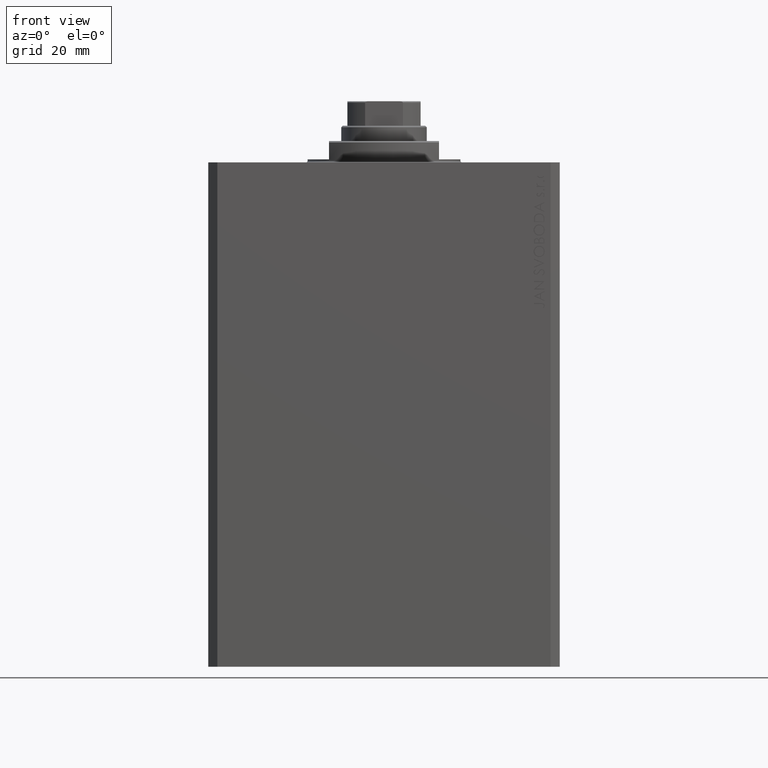
[diagram: clean part render]
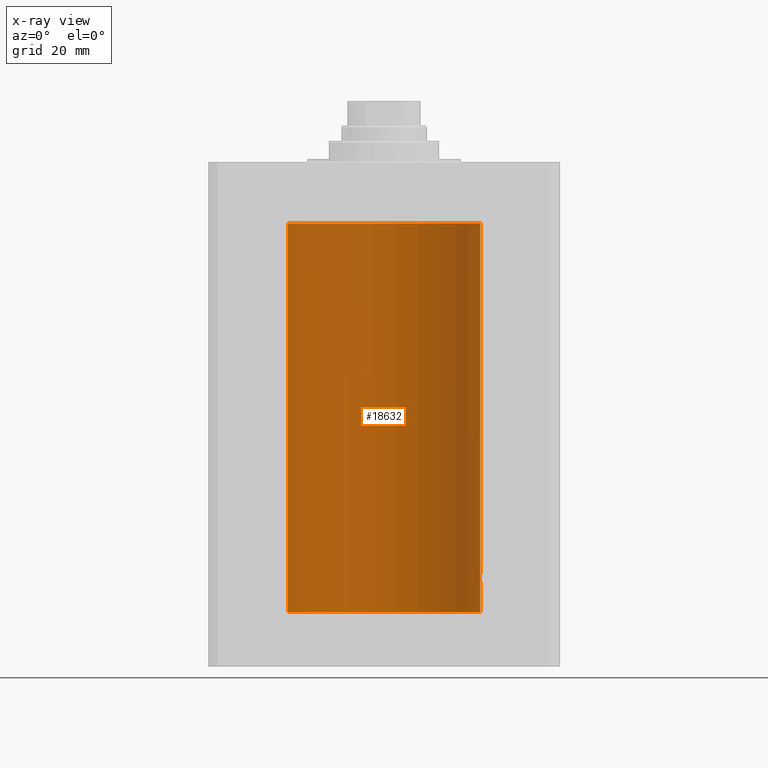
[diagram: x-ray — body ghosted, one internal face saturated and labeled with its STEP entity id]
A machine part, front view, then the same camera in x-ray: the body is ghosted and one INTERNAL B-rep face — a face not visible from any outside direction — is saturated and labeled: STEP entity #18632.
In plain terms, the highlighted cylindrical surface (partial cylindrical patch) has radius 31.5 mm, axis along (0, 0, 1).
Its self-contained STEP definition (entity closure, byte-faithful):
#80 = CARTESIAN_POINT ( 'NONE',  ( -31.49364602877929897, 0.6441674297270015837, -30.89795957697708317 ) ) ;
#1962 = B_SPLINE_CURVE_WITH_KNOTS ( 'NONE', 3,
 ( #24655, #13912, #10114, #42823, #3198, #17258, #21311, #17493, #6538, #28940, #10585, #18190, #9882, #7005, #35890, #27998, #20832, #28704, #39949, #35654, #31818, #24422, #46888, #17725, #7240, #80, #39005, #14149, #3668, #46413 ),
 .UNSPECIFIED., .F., .F.,
 ( 4, 2, 2, 2, 2, 2, 2, 2, 2, 2, 2, 2, 2, 2, 4 ),
 ( 2.625213444697534148E-19, 0.0003909052907595647391, 0.0007818105815191293698, 0.001172715872278693892, 0.001563621163038258956, 0.002345431744557394723, 0.003127242326076530923, 0.003518147616836098807, 0.003909052907595665823, 0.004299958198355233706, 0.004690863489114801589, 0.005081768779874370340, 0.005472674070633938223, 0.005863579361393506106, 0.006254484652153074857 ),
 .UNSPECIFIED. ) ;
#2440 = CARTESIAN_POINT ( 'NONE',  ( 0.000000000000000000, 0.000000000000000000, -147.0999999999999943 ) ) ;
#2499 = CARTESIAN_POINT ( 'NONE',  ( 31.43644381923627051, 2.000000000000389910, -136.0000000000000000 ) ) ;
#2930 = CARTESIAN_POINT ( 'NONE',  ( 31.44047330683569186, 1.935793094480593224, -135.4805747813048526 ) ) ;
#3111 = CARTESIAN_POINT ( 'NONE',  ( 31.50000000000000000, 0.000000000000000000, -147.0999999999999943 ) ) ;
#3198 = CARTESIAN_POINT ( 'NONE',  ( -31.49363138352033431, 0.6448700584747274478, -27.10228292539639128 ) ) ;
#3668 = CARTESIAN_POINT ( 'NONE',  ( -31.50000000000000000, 0.1305468079557571826, -31.00000000000000000 ) ) ;
#4205 = CARTESIAN_POINT ( 'NONE',  ( 31.45992223434330981, 1.599182806012582558, -137.2291100714819265 ) ) ;
#4666 = VERTEX_POINT ( 'NONE', #27807 ) ;
#4914 = CARTESIAN_POINT ( 'NONE',  ( 31.43644381923627051, 2.000000000000389910, -136.0000000000000000 ) ) ;
#5079 = ORIENTED_EDGE ( 'NONE', *, *, #30492, .T. ) ;
#5192 = CARTESIAN_POINT ( 'NONE',  ( -31.50000000000000000, 1.397936845058764387E-14, -27.00000000000000000 ) ) ;
#5320 = CYLINDRICAL_SURFACE ( 'NONE', #7410, 31.50000000000000000 ) ;
#6047 = VERTEX_POINT ( 'NONE', #10938 ) ;
#6117 = EDGE_CURVE ( 'NONE', #7185, #34570, #11376, .T. ) ;
#6538 = CARTESIAN_POINT ( 'NONE',  ( -31.47237164446477209, 1.322250186170389252, -27.49378908604443694 ) ) ;
#7005 = CARTESIAN_POINT ( 'NONE',  ( -31.43644085734510796, 2.000046555665927261, -29.12976806868835666 ) ) ;
#7185 = VERTEX_POINT ( 'NONE', #43737 ) ;
#7240 = CARTESIAN_POINT ( 'NONE',  ( -31.48775605676681266, 0.8865158617371098337, -30.79757944476694576 ) ) ;
#7410 = AXIS2_PLACEMENT_3D ( 'NONE', #2440, #7598, #10950 ) ;
#7429 = CARTESIAN_POINT ( 'NONE',  ( 31.50000000000000000, 0.000000000000000000, -147.0999999999999943 ) ) ;
#7563 = EDGE_CURVE ( 'NONE', #32862, #12966, #45358, .T. ) ;
#7568 = ORIENTED_EDGE ( 'NONE', *, *, #11981, .F. ) ;
#7598 = DIRECTION ( 'NONE',  ( -0.000000000000000000, -0.000000000000000000, 1.000000000000000000 ) ) ;
#7673 = EDGE_CURVE ( 'NONE', #12966, #32840, #22281, .T. ) ;
#7827 = CARTESIAN_POINT ( 'NONE',  ( -31.50000000000000000, 3.857637408943224358E-15, -30.99999999999999645 ) ) ;
#8708 = CARTESIAN_POINT ( 'NONE',  ( 31.49916827061299784, 0.2622045237009093532, -137.9870193222189130 ) ) ;
#9631 = ORIENTED_EDGE ( 'NONE', *, *, #27188, .T. ) ;
#9882 = CARTESIAN_POINT ( 'NONE',  ( -31.43644976744935349, 1.999906504661145057, -28.73831721771797731 ) ) ;
#10114 = CARTESIAN_POINT ( 'NONE',  ( -31.49916865039979186, 0.2621451228717642246, -27.01297480444316079 ) ) ;
#10120 = CARTESIAN_POINT ( 'NONE',  ( -31.50000000000000000, 3.857637417314162689E-15, -147.0999999999999943 ) ) ;
#10585 = CARTESIAN_POINT ( 'NONE',  ( -31.45162599326494757, 1.747914105633341375, -27.99368423768024527 ) ) ;
#10938 = CARTESIAN_POINT ( 'NONE',  ( 31.50000000000000000, -8.369814204394935255E-24, -134.0000000000000000 ) ) ;
#10950 = DIRECTION ( 'NONE',  ( 1.000000000000000000, 0.000000000000000000, 0.000000000000000000 ) ) ;
#11008 = DIRECTION ( 'NONE',  ( -0.000000000000000000, -0.000000000000000000, 1.000000000000000000 ) ) ;
#11024 = CARTESIAN_POINT ( 'NONE',  ( 31.47656038302703507, 1.219789706799898843, -134.4096921557544988 ) ) ;
#11354 = CARTESIAN_POINT ( 'NONE',  ( 31.47236118406704364, 1.322499398534440429, -137.5059945699081823 ) ) ;
#11376 = CIRCLE ( 'NONE', #35015, 31.50000000000000000 ) ;
#11981 = EDGE_CURVE ( 'NONE', #26720, #34570, #32063, .T. ) ;
#12232 = VECTOR ( 'NONE', #11008, 1000.000000000000000 ) ;
#12279 = CARTESIAN_POINT ( 'NONE',  ( 31.50000000000000711, 0.1322106156816646172, -138.0000000000000568 ) ) ;
#12966 = VERTEX_POINT ( 'NONE', #14869 ) ;
#13011 = DIRECTION ( 'NONE',  ( 0.000000000000000000, 0.000000000000000000, 1.000000000000000000 ) ) ;
#13912 = CARTESIAN_POINT ( 'NONE',  ( -31.50000000000000711, 0.1321804137546035152, -27.00000000000000711 ) ) ;
#14024 = DIRECTION ( 'NONE',  ( 0.000000000000000000, 0.000000000000000000, 1.000000000000000000 ) ) ;
#14053 = LINE ( 'NONE', #3111, #17951 ) ;
#14149 = CARTESIAN_POINT ( 'NONE',  ( -31.49916171907896256, 0.2631371420809984762, -30.98691729972353315 ) ) ;
#14869 = CARTESIAN_POINT ( 'NONE',  ( -31.50000000000000000, 3.857637417314162689E-15, -147.0999999999999943 ) ) ;
#15350 = CARTESIAN_POINT ( 'NONE',  ( -31.50000000000000000, 3.857637417314162689E-15, -147.0999999999999943 ) ) ;
#15885 = CARTESIAN_POINT ( 'NONE',  ( 0.000000000000000000, 0.000000000000000000, -147.0999999999999943 ) ) ;
#17258 = CARTESIAN_POINT ( 'NONE',  ( -31.48773989768472603, 0.8870801819049330961, -27.20270307449468916 ) ) ;
#17493 = CARTESIAN_POINT ( 'NONE',  ( -31.47657892357849718, 1.219347894895174589, -27.40931637798618326 ) ) ;
#17725 = CARTESIAN_POINT ( 'NONE',  ( -31.48420048909751756, 1.003425746290474763, -30.73496696875380607 ) ) ;
#17929 = CARTESIAN_POINT ( 'NONE',  ( 31.50000000000000711, 0.1305169792915967519, -133.9999999999999432 ) ) ;
#17951 = VECTOR ( 'NONE', #35569, 1000.000000000000000 ) ;
#18190 = CARTESIAN_POINT ( 'NONE',  ( -31.43990583976198039, 1.947383405442052906, -28.47504952007440693 ) ) ;
#18632 = ADVANCED_FACE ( 'NONE', ( #23432 ), #5320, .F. ) ;
#19901 = CARTESIAN_POINT ( 'NONE',  ( 31.45161214644910075, 1.748160858796773631, -137.0059024499661291 ) ) ;
#20453 = ORIENTED_EDGE ( 'NONE', *, *, #7563, .F. ) ;
#20832 = CARTESIAN_POINT ( 'NONE',  ( -31.44279716593210949, 1.898163692853223061, -29.64354408641193928 ) ) ;
#20996 = ORIENTED_EDGE ( 'NONE', *, *, #22324, .T. ) ;
#21280 = CARTESIAN_POINT ( 'NONE',  ( 31.47243113015943550, 1.320912165297383201, -134.4924797776056948 ) ) ;
#21311 = CARTESIAN_POINT ( 'NONE',  ( -31.48424881603013148, 1.001951351791703804, -27.26414944111796856 ) ) ;
#21514 = CARTESIAN_POINT ( 'NONE',  ( 31.49597888575898708, 0.5193621964009151881, -134.0641961002934295 ) ) ;
#22132 = CARTESIAN_POINT ( 'NONE',  ( 0.000000000000000000, 0.000000000000000000, -19.99999999999998934 ) ) ;
#22281 = LINE ( 'NONE', #15350, #44609 ) ;
#22322 = CARTESIAN_POINT ( 'NONE',  ( 31.48424227690099642, 1.002158581476550347, -137.7357332860677843 ) ) ;
#22324 = EDGE_CURVE ( 'NONE', #39586, #6047, #27851, .T. ) ;
#22683 = EDGE_CURVE ( 'NONE', #32862, #4666, #14053, .T. ) ;
#23253 = CARTESIAN_POINT ( 'NONE',  ( 31.49362851683618914, 0.6450141649083286355, -137.8976700761137124 ) ) ;
#23432 = FACE_OUTER_BOUND ( 'NONE', #25430, .T. ) ;
#24422 = CARTESIAN_POINT ( 'NONE',  ( -31.47242045906136099, 1.321166510329244925, -30.50729961746650076 ) ) ;
#24655 = CARTESIAN_POINT ( 'NONE',  ( -31.50000000000000000, 1.397936845058764387E-14, -27.00000000000000000 ) ) ;
#24856 = CARTESIAN_POINT ( 'NONE',  ( 31.45991621267056004, 1.590260824275577356, -134.7801457396745093 ) ) ;
#25096 = CARTESIAN_POINT ( 'NONE',  ( 31.43644381923627051, 2.000000000000389910, -136.0000000000000000 ) ) ;
#25359 = DIRECTION ( 'NONE',  ( -0.000000000000000000, -0.000000000000000000, 1.000000000000000000 ) ) ;
#25430 = EDGE_LOOP ( 'NONE', ( #36983, #20453, #46433, #5079, #20996, #29117, #39396, #7568, #9631 ) ) ;
#25489 = AXIS2_PLACEMENT_3D ( 'NONE', #15885, #13011, #30900 ) ;
#25557 = CARTESIAN_POINT ( 'NONE',  ( 31.49364883223205425, 0.6440257487116654023, -134.1019945078124351 ) ) ;
#26720 = VERTEX_POINT ( 'NONE', #5192 ) ;
#27188 = EDGE_CURVE ( 'NONE', #26720, #32840, #1962, .T. ) ;
#27807 = CARTESIAN_POINT ( 'NONE',  ( 31.50000000000000000, -5.244345426788806144E-15, -138.0000000000000000 ) ) ;
#27851 = B_SPLINE_CURVE_WITH_KNOTS ( 'NONE', 3,
 ( #25096, #40154, #35625, #2930, #47090, #43743, #28671, #24856, #39446, #21280, #11024, #35863, #32495, #25557, #21514, #35388, #17929, #42794 ),
 .UNSPECIFIED., .F., .F.,
 ( 4, 2, 2, 2, 2, 2, 2, 2, 4 ),
 ( 0.003127956870251400769, 0.003518772842989208692, 0.003909588815727015748, 0.004300404788464823672, 0.004691220761202631595, 0.005082036733940439518, 0.005472852706678247442, 0.005863668679416054498, 0.006254484652153862421 ),
 .UNSPECIFIED. ) ;
#27998 = CARTESIAN_POINT ( 'NONE',  ( -31.44046365243112362, 1.935949445030092253, -29.51885062223535172 ) ) ;
#28671 = CARTESIAN_POINT ( 'NONE',  ( 31.45226167581968113, 1.735077252816690230, -134.9967648169954657 ) ) ;
#28704 = CARTESIAN_POINT ( 'NONE',  ( -31.44868630248347330, 1.797956860106296073, -29.88573445525094385 ) ) ;
#28940 = CARTESIAN_POINT ( 'NONE',  ( -31.45993541206224720, 1.598922699014384996, -27.77056366933358689 ) ) ;
#29056 = DIRECTION ( 'NONE',  ( 1.000000000000000000, 0.000000000000000000, 0.000000000000000000 ) ) ;
#29117 = ORIENTED_EDGE ( 'NONE', *, *, #31049, .T. ) ;
#29442 = VECTOR ( 'NONE', #25359, 1000.000000000000000 ) ;
#29475 = CARTESIAN_POINT ( 'NONE',  ( 31.48773468680478160, 0.8872681233992232297, -137.7972062396702313 ) ) ;
#30492 = EDGE_CURVE ( 'NONE', #4666, #39586, #42786, .T. ) ;
#30900 = DIRECTION ( 'NONE',  ( 1.000000000000000000, 0.000000000000000000, 0.000000000000000000 ) ) ;
#31049 = EDGE_CURVE ( 'NONE', #6047, #7185, #43727, .T. ) ;
#31349 = CARTESIAN_POINT ( 'NONE',  ( 31.43644381923627762, 2.000000000000387246, -136.2610318865086185 ) ) ;
#31818 = CARTESIAN_POINT ( 'NONE',  ( -31.46402885784291215, 1.507852291435628045, -30.32053570646255736 ) ) ;
#32063 = LINE ( 'NONE', #10120, #29442 ) ;
#32495 = CARTESIAN_POINT ( 'NONE',  ( 31.48776132734998967, 0.8863252928784803863, -134.2023288708493283 ) ) ;
#32840 = VERTEX_POINT ( 'NONE', #7827 ) ;
#32862 = VERTEX_POINT ( 'NONE', #41249 ) ;
#34570 = VERTEX_POINT ( 'NONE', #39696 ) ;
#34710 = CARTESIAN_POINT ( 'NONE',  ( 31.43989559156923264, 1.947546710638696110, -136.5243738522823378 ) ) ;
#35015 = AXIS2_PLACEMENT_3D ( 'NONE', #22132, #14024, #29056 ) ;
#35388 = CARTESIAN_POINT ( 'NONE',  ( 31.49916210907646175, 0.2630769646869162703, -134.0130766648357508 ) ) ;
#35569 = DIRECTION ( 'NONE',  ( -0.000000000000000000, -0.000000000000000000, 1.000000000000000000 ) ) ;
#35625 = CARTESIAN_POINT ( 'NONE',  ( 31.43728213781475489, 1.986944500966170146, -135.7370380017273135 ) ) ;
#35654 = CARTESIAN_POINT ( 'NONE',  ( -31.45990328919314649, 1.590516142808641842, -30.21952462249807425 ) ) ;
#35863 = CARTESIAN_POINT ( 'NONE',  ( 31.48420706794360058, 1.003217712170305864, -134.2649149328429132 ) ) ;
#35890 = CARTESIAN_POINT ( 'NONE',  ( -31.43727648790974172, 1.987033456253953112, -29.26230567213424294 ) ) ;
#36851 = DIRECTION ( 'NONE',  ( -0.000000000000000000, -0.000000000000000000, 1.000000000000000000 ) ) ;
#36891 = CARTESIAN_POINT ( 'NONE',  ( 31.49600115550921231, 0.5179422407981826293, -137.9361644646872378 ) ) ;
#36983 = ORIENTED_EDGE ( 'NONE', *, *, #7673, .F. ) ;
#39005 = CARTESIAN_POINT ( 'NONE',  ( -31.49597709302052451, 0.5194777340345942962, -30.93577488239865758 ) ) ;
#39396 = ORIENTED_EDGE ( 'NONE', *, *, #6117, .T. ) ;
#39446 = CARTESIAN_POINT ( 'NONE',  ( 31.46404119587053927, 1.507594711990238201, -134.6791728524376310 ) ) ;
#39586 = VERTEX_POINT ( 'NONE', #4914 ) ;
#39696 = CARTESIAN_POINT ( 'NONE',  ( -31.50000000000000000, 3.857637417314162689E-15, -19.99999999999998934 ) ) ;
#39949 = CARTESIAN_POINT ( 'NONE',  ( -31.45224836082999431, 1.735318303535943185, -30.00282216311122951 ) ) ;
#40154 = CARTESIAN_POINT ( 'NONE',  ( 31.43644381923627051, 2.000000000000391687, -135.8695436863447412 ) ) ;
#41249 = CARTESIAN_POINT ( 'NONE',  ( 31.50000000000000000, 0.000000000000000000, -147.0999999999999943 ) ) ;
#42786 = B_SPLINE_CURVE_WITH_KNOTS ( 'NONE', 3,
 ( #45015, #12279, #8708, #36891, #23253, #29475, #22322, #44070, #11354, #4205, #19901, #34710, #31349, #2499 ),
 .UNSPECIFIED., .F., .F.,
 ( 4, 2, 2, 2, 2, 2, 4 ),
 ( 5.096331421419789159E-18, 0.0003909946087814292703, 0.0007819892175628534448, 0.001172983826344277999, 0.001563978435125702553, 0.002345967652688551661, 0.003127956870251400769 ),
 .UNSPECIFIED. ) ;
#42794 = CARTESIAN_POINT ( 'NONE',  ( 31.50000000000000000, -8.369814204394935255E-24, -134.0000000000000000 ) ) ;
#42823 = CARTESIAN_POINT ( 'NONE',  ( -31.49600294595510164, 0.5178263803265128473, -27.06380656104273896 ) ) ;
#43727 = LINE ( 'NONE', #7429, #12232 ) ;
#43737 = CARTESIAN_POINT ( 'NONE',  ( 31.50000000000000000, 0.000000000000000000, -19.99999999999998934 ) ) ;
#43743 = CARTESIAN_POINT ( 'NONE',  ( 31.44869941755756315, 1.797728078038221655, -135.1138051504310056 ) ) ;
#44070 = CARTESIAN_POINT ( 'NONE',  ( 31.47656968928225751, 1.219587704424718533, -137.5905023401450933 ) ) ;
#44609 = VECTOR ( 'NONE', #36851, 1000.000000000000000 ) ;
#45015 = CARTESIAN_POINT ( 'NONE',  ( 31.50000000000000000, -5.244345426788806144E-15, -138.0000000000000000 ) ) ;
#45358 = CIRCLE ( 'NONE', #25489, 31.50000000000000000 ) ;
#46413 = CARTESIAN_POINT ( 'NONE',  ( -31.50000000000000000, 3.857637408943224358E-15, -30.99999999999999645 ) ) ;
#46433 = ORIENTED_EDGE ( 'NONE', *, *, #22683, .T. ) ;
#46888 = CARTESIAN_POINT ( 'NONE',  ( -31.47655123270016375, 1.220027114947935809, -30.59012812369856960 ) ) ;
#47090 = CARTESIAN_POINT ( 'NONE',  ( 31.44280827872263018, 1.897980201673368450, -135.3559202626804563 ) ) ;